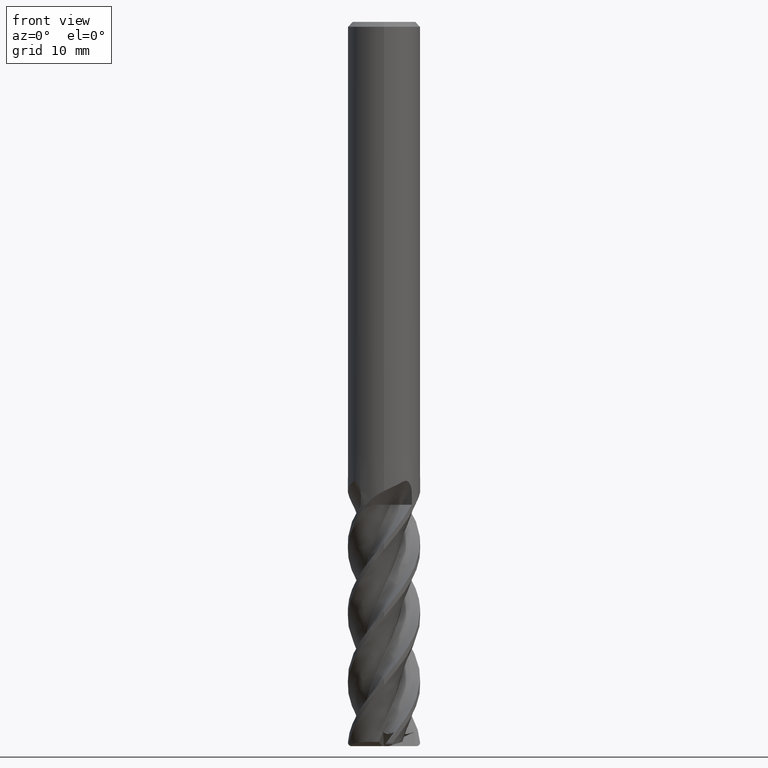
[diagram: clean part render]
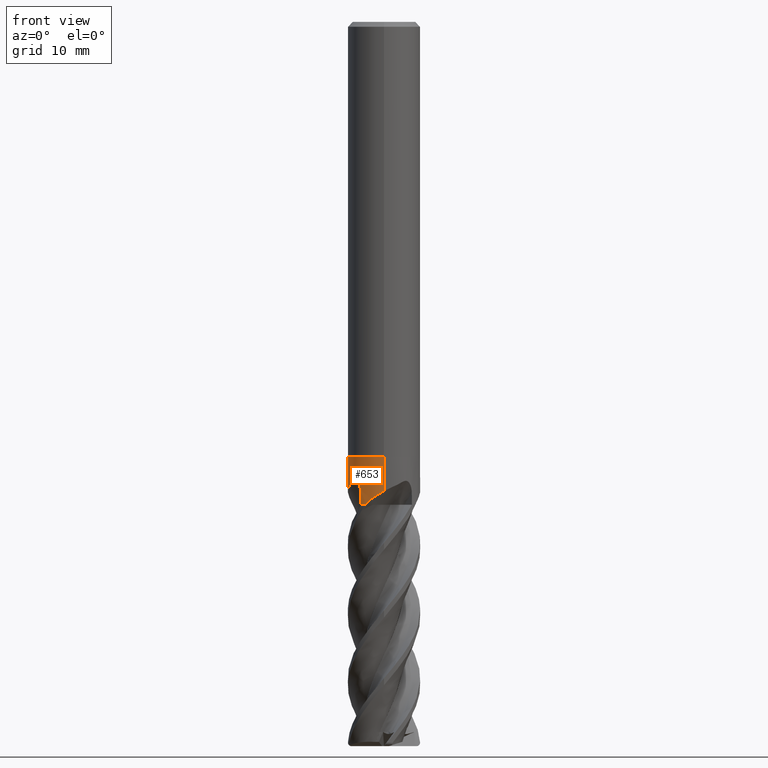
[diagram: same view with one face highlighted and labeled with its STEP entity id]
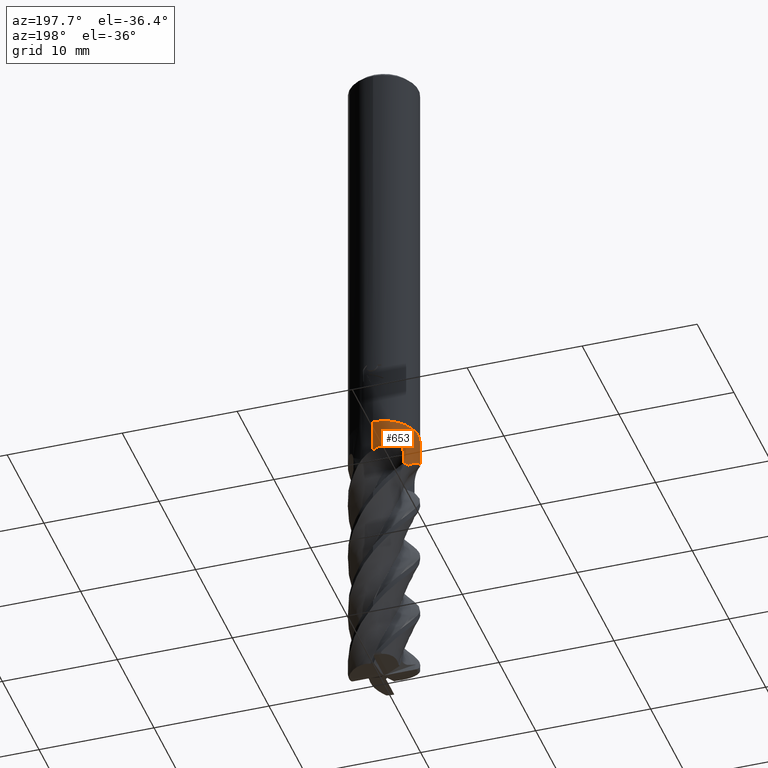
[diagram: same view with one face highlighted and labeled with its STEP entity id]
A machine part, front view. The second image highlights one B-rep face of the part: STEP entity #653.
A second angle (auxiliary view) of the same face is appended — the face is thin or edge-on in the first view.
In plain terms, the highlighted cylindrical surface (edge-blend (fillet) strip) has radius 3 mm, axis along (-0, -0, 1).
Its self-contained STEP definition (entity closure, byte-faithful):
#557=EDGE_CURVE('',#901,#1561,#1616,.T.);
#609=EDGE_CURVE('',#969,#995,#1673,.T.);
#653=ADVANCED_FACE('',(#1719),#1720,.T.);
#677=VERTEX_POINT('',#1744);
#697=EDGE_CURVE('',#727,#969,#1766,.T.);
#727=VERTEX_POINT('',#1797);
#765=EDGE_CURVE('',#1331,#1315,#1839,.T.);
#869=EDGE_CURVE('',#877,#1097,#1949,.T.);
#877=VERTEX_POINT('',#1958);
#901=VERTEX_POINT('',#1983);
#967=EDGE_CURVE('',#1079,#901,#2059,.T.);
#969=VERTEX_POINT('',#2061);
#995=VERTEX_POINT('',#2091);
#1029=EDGE_CURVE('',#677,#1321,#2128,.T.);
#1043=EDGE_CURVE('',#995,#1097,#2143,.T.);
#1079=VERTEX_POINT('',#2181);
#1091=EDGE_CURVE('',#1321,#1331,#2193,.T.);
#1097=VERTEX_POINT('',#2200);
#1111=EDGE_CURVE('',#877,#1175,#2214,.T.);
#1131=VERTEX_POINT('',#2235);
#1133=EDGE_CURVE('',#1131,#727,#2237,.T.);
#1175=VERTEX_POINT('',#2281);
#1315=VERTEX_POINT('',#2442);
#1321=VERTEX_POINT('',#2448);
#1331=VERTEX_POINT('',#2459);
#1391=EDGE_CURVE('',#1131,#1561,#2523,.T.);
#1431=EDGE_CURVE('',#1315,#1079,#2569,.T.);
#1473=EDGE_CURVE('',#1175,#677,#2614,.T.);
#1561=VERTEX_POINT('',#2712);
#1616=B_SPLINE_CURVE_WITH_KNOTS('',3,(#2764,#2765,#2766,#2767),.UNSPECIFIED.,.F.,.F.,(4,4),(0.0,0.987519454477457),.UNSPECIFIED.);
#1673=B_SPLINE_CURVE_WITH_KNOTS('',3,(#3642,#3643,#3644,#3645,#3646,#3647,#3648,#3649,#3650,#3651,#3652,#3653,#3654,#3655),.UNSPECIFIED.,.F.,.F.,(4,2,2,2,2,2,4),(0.0,0.220812585662505,0.414100378655447,0.624967141586179,0.915197095124494,1.22054545024936,1.53996735432878),.UNSPECIFIED.);
#1719=FACE_OUTER_BOUND('',#3913,.T.);
#1720=CYLINDRICAL_SURFACE('',#3914,2.99995);
#1744=CARTESIAN_POINT('',(1.10817412295454E-013,-2.99995,-38.8629474788676));
#1766=B_SPLINE_CURVE_WITH_KNOTS('',3,(#4040,#4041,#4042,#4043,#4044,#4045,#4046,#4047,#4048,#4049),.UNSPECIFIED.,.F.,.F.,(4,2,2,2,4),(0.0,0.902489620677153,1.95218519378516,2.92279779927181,3.79014816726821),.UNSPECIFIED.);
#1797=CARTESIAN_POINT('',(-2.6346472170812,1.4346895287923,-39.9162410101851));
#1839=LINE('',#4619,#4620);
#1949=CIRCLE('',#5145,2.99995);
#1958=CARTESIAN_POINT('',(-1.5184894654767,-2.58725525330151,-40.0));
#1983=CARTESIAN_POINT('',(-2.30190251849584,1.92378397899621,-39.01265433784));
#2059=B_SPLINE_CURVE_WITH_KNOTS('',3,(#6125,#6126,#6127,#6128,#6129,#6130,#6131,#6132,#6133,#6134,#6135,#6136,#6137,#6138),.UNSPECIFIED.,.F.,.F.,(4,2,2,2,2,2,4),(0.0,0.220812585662308,0.414100378655003,0.624967141585456,0.91519709512339,1.22054545024786,1.53996735432687),.UNSPECIFIED.);
#2061=CARTESIAN_POINT('',(-2.51766032165679,-1.63128369919368,-38.0583899828256));
#2091=CARTESIAN_POINT('',(-1.92378397899621,-2.30190251849584,-39.01265433784));
#2128=LINE('',#6618,#6619);
#2143=B_SPLINE_CURVE_WITH_KNOTS('',3,(#6987,#6988,#6989,#6990),.UNSPECIFIED.,.F.,.F.,(4,4),(0.0,0.987519454474261),.UNSPECIFIED.);
#2181=CARTESIAN_POINT('',(-1.63128369919368,2.51766032165679,-38.0583899828255));
#2193=CIRCLE('',#7161,2.99995);
#2200=CARTESIAN_POINT('',(-1.90769982472472,-2.31524974489692,-40.0000000000005));
#2214=B_SPLINE_CURVE_WITH_KNOTS('',3,(#7278,#7279,#7280,#7281),.UNSPECIFIED.,.F.,.F.,(4,4),(0.0,0.124007843973906),.UNSPECIFIED.);
#2235=CARTESIAN_POINT('',(-2.58725525330128,1.51848946547711,-40.0000000000005));
#2237=B_SPLINE_CURVE_WITH_KNOTS('',3,(#7380,#7381,#7382,#7383),.UNSPECIFIED.,.F.,.F.,(4,4),(0.0,0.124007843973843),.UNSPECIFIED.);
#2281=CARTESIAN_POINT('',(-1.4346895287923,-2.6346472170812,-39.9162410101851));
#2442=CARTESIAN_POINT('',(-1.10095767329448E-013,2.99995,-38.8629474788675));
#2448=CARTESIAN_POINT('',(3.67375783114944E-016,-2.99995,-36.0));
#2459=CARTESIAN_POINT('',(0.0,2.99995,-36.0));
#2523=CIRCLE('',#9778,2.99995);
#2569=B_SPLINE_CURVE_WITH_KNOTS('',3,(#10211,#10212,#10213,#10214,#10215,#10216,#10217,#10218,#10219,#10220),.UNSPECIFIED.,.F.,.F.,(4,2,2,2,4),(0.0,0.902489620677198,1.9521851937853,2.92279779927212,3.79014816726866),.UNSPECIFIED.);
#2614=B_SPLINE_CURVE_WITH_KNOTS('',3,(#10834,#10835,#10836,#10837,#10838,#10839,#10840,#10841,#10842,#10843),.UNSPECIFIED.,.F.,.F.,(4,2,2,2,4),(0.0,0.902489620677249,1.95218519378538,2.92279779927205,3.79014816726874),.UNSPECIFIED.);
#2712=CARTESIAN_POINT('',(-2.31524974489692,1.90769982472473,-40.0));
#2764=CARTESIAN_POINT('',(-2.30190251849585,1.9237839789962,-39.01265433784));
#2765=CARTESIAN_POINT('',(-2.30677746652523,1.91795086297647,-39.3417396965278));
#2766=CARTESIAN_POINT('',(-2.31123032844436,1.91257792598354,-39.6708861685918));
#2767=CARTESIAN_POINT('',(-2.31524974489692,1.90769982472472,-40.0000000000005));
#3642=CARTESIAN_POINT('',(-2.51766032165298,-1.63128369919958,-38.0583899830842));
#3643=CARTESIAN_POINT('',(-2.48029618481049,-1.68895006638469,-38.0320064858218));
#3644=CARTESIAN_POINT('',(-2.43921713765044,-1.74794765426796,-38.01736007666));
#3645=CARTESIAN_POINT('',(-2.3562164959618,-1.85797805191975,-38.0201573285711));
#3646=CARTESIAN_POINT('',(-2.31710139609986,-1.90637008364857,-38.0337843153838));
#3647=CARTESIAN_POINT('',(-2.23657201056163,-2.00040448279869,-38.0864147133244));
#3648=CARTESIAN_POINT('',(-2.19718778511531,-2.04321034760818,-38.1263618590241));
#3649=CARTESIAN_POINT('',(-2.11247718773343,-2.1312311926174,-38.240187592551));
#3650=CARTESIAN_POINT('',(-2.07067476604739,-2.17119623942879,-38.3208905444379));
#3651=CARTESIAN_POINT('',(-2.00185485014974,-2.23485734605871,-38.4965988253994));
#3652=CARTESIAN_POINT('',(-1.97476780824466,-2.25845104111416,-38.5944094929828));
#3653=CARTESIAN_POINT('',(-1.93648418789195,-2.29137413423552,-38.7977647271128));
#3654=CARTESIAN_POINT('',(-1.92568564959272,-2.30031322294674,-38.905368297133));
#3655=CARTESIAN_POINT('',(-1.92378397907294,-2.30190251843173,-39.012654337841));
#3913=EDGE_LOOP('',(#11530,#11531,#11532,#11533,#11534,#11535,#11536,#11537,#11538,#11539,#11540,#11541,#11542,#11543));
#3914=AXIS2_PLACEMENT_3D('',#11544,#11545,#11546);
#4040=CARTESIAN_POINT('',(-2.63464721745487,1.43468952810611,-39.9162410089329));
#4041=CARTESIAN_POINT('',(-2.7343713920582,1.25155720993935,-39.6994086869232));
#4042=CARTESIAN_POINT('',(-2.82239005972996,1.04594641431089,-39.5117637567335));
#4043=CARTESIAN_POINT('',(-2.96562805135244,0.534954500283342,-39.1426063824301));
#4044=CARTESIAN_POINT('',(-3.00682690056177,0.236352561844347,-38.9791064505965));
#4045=CARTESIAN_POINT('',(-2.99177343911503,-0.363417548182256,-38.6834753083695));
#4046=CARTESIAN_POINT('',(-2.94296304331506,-0.651840896400465,-38.5550400871897));
#4047=CARTESIAN_POINT('',(-2.77040089603737,-1.18043869025159,-38.3047082326659));
#4048=CARTESIAN_POINT('',(-2.6574149620021,-1.41559177942602,-38.1871068389395));
#4049=CARTESIAN_POINT('',(-2.5176603216568,-1.63128369919368,-38.0583899828255));
#4619=CARTESIAN_POINT('',(-3.67375783114944E-016,2.99995,-38.0));
#4620=VECTOR('',#11627,1.0);
#5145=AXIS2_PLACEMENT_3D('',#11686,#11687,#11688);
#6125=CARTESIAN_POINT('',(-1.63128369919958,2.51766032165298,-38.0583899830842));
#6126=CARTESIAN_POINT('',(-1.68895006638464,2.48029618481053,-38.0320064858218));
#6127=CARTESIAN_POINT('',(-1.74794765426794,2.43921713765046,-38.01736007666));
#6128=CARTESIAN_POINT('',(-1.85797805191974,2.3562164959618,-38.0201573285711));
#6129=CARTESIAN_POINT('',(-1.90637008364857,2.31710139609986,-38.0337843153838));
#6130=CARTESIAN_POINT('',(-2.00040448279869,2.23657201056163,-38.0864147133243));
#6131=CARTESIAN_POINT('',(-2.04321034760818,2.1971877851153,-38.1263618590241));
#6132=CARTESIAN_POINT('',(-2.1312311926174,2.11247718773343,-38.240187592551));
#6133=CARTESIAN_POINT('',(-2.17119623942879,2.07067476604739,-38.3208905444379));
#6134=CARTESIAN_POINT('',(-2.23485734605871,2.00185485014974,-38.4965988253994));
#6135=CARTESIAN_POINT('',(-2.25845104111416,1.97476780824466,-38.5944094929827));
#6136=CARTESIAN_POINT('',(-2.29137413423552,1.93648418789195,-38.7977647271127));
#6137=CARTESIAN_POINT('',(-2.30031322294674,1.92568564959271,-38.905368297133));
#6138=CARTESIAN_POINT('',(-2.30190251843172,1.92378397907294,-39.012654337841));
#6618=CARTESIAN_POINT('',(3.67375783114944E-016,-2.99995,-38.0));
#6619=VECTOR('',#11955,1.0);
#6987=CARTESIAN_POINT('',(-1.9237839789962,-2.30190251849585,-39.01265433784));
#6988=CARTESIAN_POINT('',(-1.91795086297649,-2.30677746652522,-39.3417396965268));
#6989=CARTESIAN_POINT('',(-1.91257792598354,-2.31123032844435,-39.6708861685913));
#6990=CARTESIAN_POINT('',(-1.90769982472472,-2.31524974489692,-40.0000000000005));
#7161=AXIS2_PLACEMENT_3D('',#11997,#11998,#11999);
#7278=CARTESIAN_POINT('',(-1.51848946547711,-2.58725525330128,-40.0000000000005));
#7279=CARTESIAN_POINT('',(-1.4929893400505,-2.60222156626141,-39.9711137805187));
#7280=CARTESIAN_POINT('',(-1.46380023702855,-2.61879506503159,-39.9407336018051));
#7281=CARTESIAN_POINT('',(-1.43468952879218,-2.63464721708127,-39.9162410101849));
#7380=CARTESIAN_POINT('',(-2.58725525330128,1.51848946547711,-40.0000000000005));
#7381=CARTESIAN_POINT('',(-2.6022215662614,1.49298934005051,-39.9711137805187));
#7382=CARTESIAN_POINT('',(-2.61879506503159,1.46380023702855,-39.9407336018051));
#7383=CARTESIAN_POINT('',(-2.63464721708127,1.43468952879218,-39.9162410101849));
#9778=AXIS2_PLACEMENT_3D('',#12365,#12366,#12367);
#10211=CARTESIAN_POINT('',(1.4346895281061,2.63464721745488,-39.9162410089328));
#10212=CARTESIAN_POINT('',(1.25155720993933,2.73437139205821,-39.6994086869231));
#10213=CARTESIAN_POINT('',(1.04594641431088,2.82239005972996,-39.5117637567334));
#10214=CARTESIAN_POINT('',(0.534954500283329,2.96562805135244,-39.14260638243));
#10215=CARTESIAN_POINT('',(0.236352561844331,3.00682690056177,-38.9791064505964));
#10216=CARTESIAN_POINT('',(-0.363417548182283,2.99177343911503,-38.6834753083695));
#10217=CARTESIAN_POINT('',(-0.651840896400509,2.94296304331504,-38.5550400871897));
#10218=CARTESIAN_POINT('',(-1.18043869025156,2.77040089603737,-38.3047082326658));
#10219=CARTESIAN_POINT('',(-1.415591779426,2.65741496200211,-38.1871068389394));
#10220=CARTESIAN_POINT('',(-1.63128369919368,2.5176603216568,-38.0583899828255));
#10834=CARTESIAN_POINT('',(-1.4346895281061,-2.63464721745488,-39.9162410089329));
#10835=CARTESIAN_POINT('',(-1.25155720993932,-2.73437139205822,-39.6994086869232));
#10836=CARTESIAN_POINT('',(-1.04594641431088,-2.82239005972996,-39.5117637567335));
#10837=CARTESIAN_POINT('',(-0.534954500283352,-2.96562805135243,-39.1426063824301));
#10838=CARTESIAN_POINT('',(-0.23635256184437,-3.00682690056177,-38.9791064505965));
#10839=CARTESIAN_POINT('',(0.363417548182255,-2.99177343911503,-38.6834753083695));
#10840=CARTESIAN_POINT('',(0.651840896400462,-2.94296304331506,-38.5550400871897));
#10841=CARTESIAN_POINT('',(1.18043869025167,-2.77040089603734,-38.3047082326658));
#10842=CARTESIAN_POINT('',(1.41559177942604,-2.65741496200207,-38.1871068389395));
#10843=CARTESIAN_POINT('',(1.63128369919367,-2.51766032165679,-38.0583899828256));
#11530=ORIENTED_EDGE('',*,*,#765,.T.);
#11531=ORIENTED_EDGE('',*,*,#1431,.T.);
#11532=ORIENTED_EDGE('',*,*,#967,.T.);
#11533=ORIENTED_EDGE('',*,*,#557,.T.);
#11534=ORIENTED_EDGE('',*,*,#1391,.F.);
#11535=ORIENTED_EDGE('',*,*,#1133,.T.);
#11536=ORIENTED_EDGE('',*,*,#697,.T.);
#11537=ORIENTED_EDGE('',*,*,#609,.T.);
#11538=ORIENTED_EDGE('',*,*,#1043,.T.);
#11539=ORIENTED_EDGE('',*,*,#869,.F.);
#11540=ORIENTED_EDGE('',*,*,#1111,.T.);
#11541=ORIENTED_EDGE('',*,*,#1473,.T.);
#11542=ORIENTED_EDGE('',*,*,#1029,.T.);
#11543=ORIENTED_EDGE('',*,*,#1091,.T.);
#11544=CARTESIAN_POINT('',(0.0,0.0,-38.0));
#11545=DIRECTION('',(-0.0,-0.0,1.0));
#11546=DIRECTION('',(0.0,1.0,0.0));
#11627=DIRECTION('',(0.0,0.0,-1.0));
#11686=CARTESIAN_POINT('',(0.0,0.0,-40.0));
#11687=DIRECTION('',(0.0,0.0,-1.0));
#11688=DIRECTION('',(0.0,1.0,0.0));
#11955=DIRECTION('',(-0.0,-0.0,1.0));
#11997=CARTESIAN_POINT('',(0.0,0.0,-36.0));
#11998=DIRECTION('',(0.0,0.0,-1.0));
#11999=DIRECTION('',(0.0,1.0,0.0));
#12365=CARTESIAN_POINT('',(0.0,0.0,-40.0));
#12366=DIRECTION('',(0.0,0.0,-1.0));
#12367=DIRECTION('',(0.0,1.0,0.0));